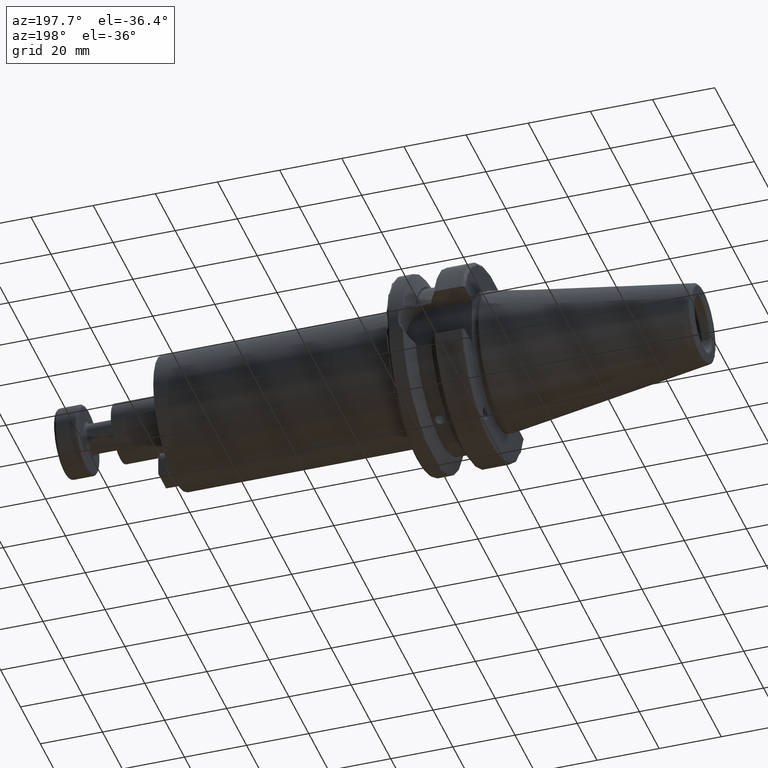
[diagram: clean part render]
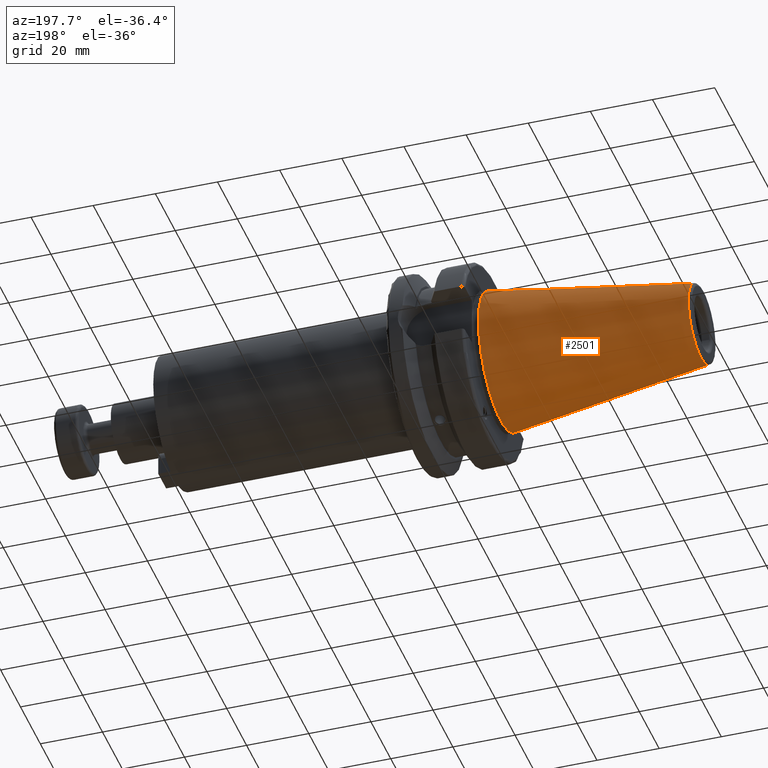
[diagram: same view with one face highlighted and labeled with its STEP entity id]
A machine part, auxiliary view. The second image highlights one B-rep face of the part: STEP entity #2501.
In plain terms, the highlighted conical surface has half-angle 8.297 deg.
Its self-contained STEP definition (entity closure, byte-faithful):
#652=CIRCLE('',#2845,12.8122885780937);
#653=CIRCLE('',#2846,12.8122885780937);
#656=CIRCLE('',#2850,22.225);
#744=CONICAL_SURFACE('',#2849,17.5186442890469,0.144812498238939);
#809=FACE_OUTER_BOUND('',#944,.T.);
#944=EDGE_LOOP('',(#2090,#2091,#2092,#2093,#2094));
#1095=LINE('',#4418,#1229);
#1229=VECTOR('',#3378,17.5186442890469);
#1406=VERTEX_POINT('',#4408);
#1407=VERTEX_POINT('',#4409);
#1409=VERTEX_POINT('',#4416);
#1653=EDGE_CURVE('',#1406,#1407,#652,.T.);
#1654=EDGE_CURVE('',#1407,#1406,#653,.T.);
#1657=EDGE_CURVE('',#1409,#1409,#656,.T.);
#1658=EDGE_CURVE('',#1409,#1406,#1095,.T.);
#2090=ORIENTED_EDGE('',*,*,#1657,.F.);
#2091=ORIENTED_EDGE('',*,*,#1658,.T.);
#2092=ORIENTED_EDGE('',*,*,#1653,.T.);
#2093=ORIENTED_EDGE('',*,*,#1654,.T.);
#2094=ORIENTED_EDGE('',*,*,#1658,.F.);
#2501=ADVANCED_FACE('',(#809),#744,.T.);
#2845=AXIS2_PLACEMENT_3D('',#4410,#3366,#3367);
#2846=AXIS2_PLACEMENT_3D('',#4411,#3368,#3369);
#2849=AXIS2_PLACEMENT_3D('',#4415,#3374,#3375);
#2850=AXIS2_PLACEMENT_3D('',#4417,#3376,#3377);
#3366=DIRECTION('center_axis',(1.,0.,0.));
#3367=DIRECTION('ref_axis',(0.,0.,-1.));
#3368=DIRECTION('center_axis',(1.,0.,0.));
#3369=DIRECTION('ref_axis',(0.,0.,-1.));
#3374=DIRECTION('center_axis',(1.,0.,0.));
#3375=DIRECTION('ref_axis',(0.,1.,0.));
#3376=DIRECTION('center_axis',(1.,0.,0.));
#3377=DIRECTION('ref_axis',(0.,0.,-1.));
#3378=DIRECTION('',(-0.989532981063282,0.144306893071729,1.76724974695192E-17));
#4408=CARTESIAN_POINT('',(-64.5443068930717,-12.8122885780937,-1.56905281969147E-15));
#4409=CARTESIAN_POINT('',(-64.5443068930717,-1.56905281969147E-15,12.8122885780937));
#4410=CARTESIAN_POINT('Origin',(-64.5443068930717,0.,0.));
#4411=CARTESIAN_POINT('Origin',(-64.5443068930717,0.,0.));
#4415=CARTESIAN_POINT('Origin',(-32.2721534465359,0.,0.));
#4416=CARTESIAN_POINT('',(4.44089209850063E-15,-22.225,-2.72177751110499E-15));
#4417=CARTESIAN_POINT('Origin',(0.,0.,0.));
#4418=CARTESIAN_POINT('',(-32.2721534465359,-17.5186442890469,-2.14541516539823E-15));